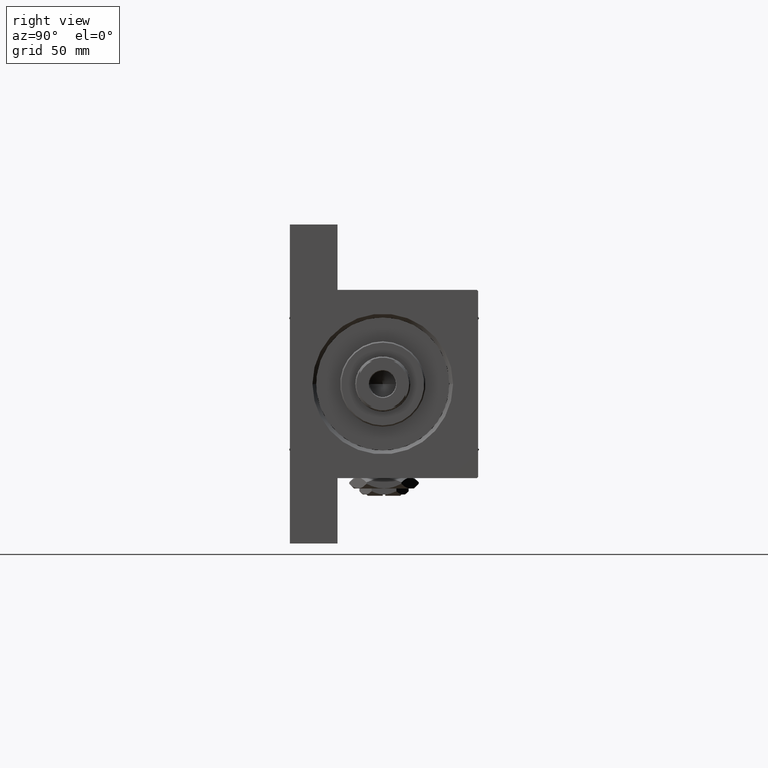
[diagram: clean part render]
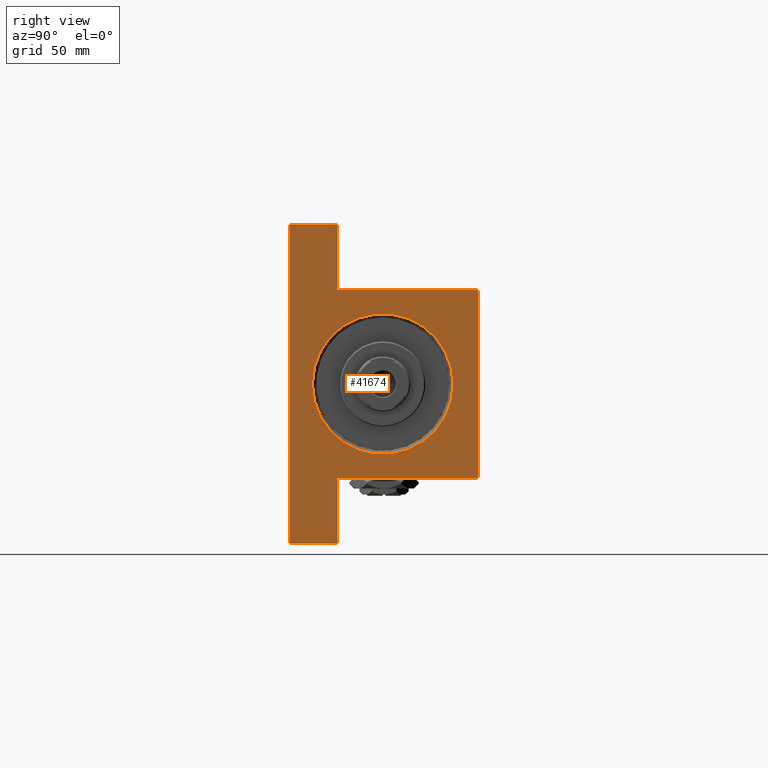
[diagram: same view with one face highlighted and labeled with its STEP entity id]
A machine part, right view. The second image highlights one B-rep face of the part: STEP entity #41674.
In plain terms, the highlighted planar face has unit normal (-1, 0, 0).
Its self-contained STEP definition (entity closure, byte-faithful):
#229 = DIRECTION ( 'NONE',  ( -1.000000000000000000, -0.000000000000000000, 0.000000000000000000 ) ) ;
#1026 = EDGE_CURVE ( 'NONE', #18470, #19590, #39704, .T. ) ;
#1058 = ORIENTED_EDGE ( 'NONE', *, *, #15769, .T. ) ;
#1314 = VERTEX_POINT ( 'NONE', #43135 ) ;
#1386 = EDGE_CURVE ( 'NONE', #12881, #43313, #19716, .T. ) ;
#1469 = CARTESIAN_POINT ( 'NONE',  ( 210.0000000000000000, 37.50000000000000000, -37.50000000000000000 ) ) ;
#1666 = DIRECTION ( 'NONE',  ( 0.000000000000000000, 0.000000000000000000, -1.000000000000000000 ) ) ;
#1816 = DIRECTION ( 'NONE',  ( -0.000000000000000000, -1.000000000000000000, -0.000000000000000000 ) ) ;
#2042 = LINE ( 'NONE', #39927, #9520 ) ;
#2946 = VERTEX_POINT ( 'NONE', #31979 ) ;
#3188 = AXIS2_PLACEMENT_3D ( 'NONE', #27691, #7982, #19952 ) ;
#3711 = FACE_OUTER_BOUND ( 'NONE', #48593, .T. ) ;
#4050 = ORIENTED_EDGE ( 'NONE', *, *, #27197, .T. ) ;
#4256 = CARTESIAN_POINT ( 'NONE',  ( 210.0000000000000000, 0.000000000000000000, -28.49999999999999645 ) ) ;
#4939 = VECTOR ( 'NONE', #47857, 1000.000000000000000 ) ;
#4972 = DIRECTION ( 'NONE',  ( 0.000000000000000000, -0.7071067811865279218, 0.7071067811865671127 ) ) ;
#5523 = EDGE_CURVE ( 'NONE', #5552, #2946, #9560, .T. ) ;
#5552 = VERTEX_POINT ( 'NONE', #4256 ) ;
#5931 = EDGE_CURVE ( 'NONE', #36072, #25886, #24645, .T. ) ;
#5951 = VERTEX_POINT ( 'NONE', #7795 ) ;
#6008 = LINE ( 'NONE', #43153, #4939 ) ;
#6169 = EDGE_CURVE ( 'NONE', #25886, #12881, #40422, .T. ) ;
#6178 = CARTESIAN_POINT ( 'NONE',  ( 210.0000000000000284, -63.50000000000002842, -18.50000000000000000 ) ) ;
#7194 = CIRCLE ( 'NONE', #37554, 27.99999999999999645 ) ;
#7795 = CARTESIAN_POINT ( 'NONE',  ( 210.0000000000000000, 37.50000000000000000, 36.99999999999999289 ) ) ;
#7982 = DIRECTION ( 'NONE',  ( -1.000000000000000000, -0.000000000000000000, 0.000000000000000000 ) ) ;
#8299 = CARTESIAN_POINT ( 'NONE',  ( 210.0000000000000000, -37.50000000000000711, -18.50000000000000355 ) ) ;
#8318 = ORIENTED_EDGE ( 'NONE', *, *, #16060, .F. ) ;
#9520 = VECTOR ( 'NONE', #40406, 1000.000000000000000 ) ;
#9560 = CIRCLE ( 'NONE', #3188, 27.99999999999999645 ) ;
#10249 = CARTESIAN_POINT ( 'NONE',  ( 210.0000000000000284, -63.50000000000002842, -18.50000000000000000 ) ) ;
#11532 = DIRECTION ( 'NONE',  ( 0.000000000000000000, 0.000000000000000000, 1.000000000000000000 ) ) ;
#11783 = CARTESIAN_POINT ( 'NONE',  ( 210.0000000000000000, 0.000000000000000000, -0.5000000000000004441 ) ) ;
#11931 = FACE_BOUND ( 'NONE', #32618, .T. ) ;
#12375 = LINE ( 'NONE', #31836, #20404 ) ;
#12429 = DIRECTION ( 'NONE',  ( 0.000000000000000000, -1.000000000000000000, 0.000000000000000000 ) ) ;
#12881 = VERTEX_POINT ( 'NONE', #6178 ) ;
#13279 = CARTESIAN_POINT ( 'NONE',  ( 210.0000000000000568, 63.50000000000000000, -18.50000000000000000 ) ) ;
#13559 = VECTOR ( 'NONE', #20893, 1000.000000000000000 ) ;
#13849 = CARTESIAN_POINT ( 'NONE',  ( 210.0000000000000000, -37.50000000000000000, 36.99999999999997868 ) ) ;
#15769 = EDGE_CURVE ( 'NONE', #5951, #1314, #47558, .T. ) ;
#16060 = EDGE_CURVE ( 'NONE', #5951, #19590, #12375, .T. ) ;
#16339 = ORIENTED_EDGE ( 'NONE', *, *, #5523, .T. ) ;
#17269 = DIRECTION ( 'NONE',  ( -1.067522139062650277E-15, -1.000000000000000000, 0.000000000000000000 ) ) ;
#18293 = CARTESIAN_POINT ( 'NONE',  ( 210.0000000000000000, -36.99999999999997158, 37.49999999999997868 ) ) ;
#18455 = VECTOR ( 'NONE', #30813, 1000.000000000000000 ) ;
#18470 = VERTEX_POINT ( 'NONE', #48516 ) ;
#18923 = CARTESIAN_POINT ( 'NONE',  ( 210.0000000000000000, 0.000000000000000000, 0.000000000000000000 ) ) ;
#19590 = VERTEX_POINT ( 'NONE', #38316 ) ;
#19716 = LINE ( 'NONE', #31690, #27768 ) ;
#19937 = ORIENTED_EDGE ( 'NONE', *, *, #1026, .T. ) ;
#19952 = DIRECTION ( 'NONE',  ( 0.000000000000000000, 0.000000000000000000, 1.000000000000000000 ) ) ;
#20404 = VECTOR ( 'NONE', #1666, 1000.000000000000000 ) ;
#20893 = DIRECTION ( 'NONE',  ( 0.000000000000000000, -9.251858538542972814E-17, -1.000000000000000000 ) ) ;
#23133 = EDGE_CURVE ( 'NONE', #29998, #43313, #39604, .T. ) ;
#24455 = ORIENTED_EDGE ( 'NONE', *, *, #1386, .T. ) ;
#24645 = LINE ( 'NONE', #39824, #13559 ) ;
#24741 = ORIENTED_EDGE ( 'NONE', *, *, #6169, .T. ) ;
#25062 = VERTEX_POINT ( 'NONE', #18293 ) ;
#25276 = CARTESIAN_POINT ( 'NONE',  ( 210.0000000000000284, -63.50000000000002842, -37.50000000000000000 ) ) ;
#25886 = VERTEX_POINT ( 'NONE', #8299 ) ;
#26088 = CARTESIAN_POINT ( 'NONE',  ( 210.0000000000000568, 63.50000000000000000, -18.50000000000000000 ) ) ;
#27119 = VECTOR ( 'NONE', #1816, 1000.000000000000000 ) ;
#27154 = PLANE ( 'NONE',  #37644 ) ;
#27169 = ORIENTED_EDGE ( 'NONE', *, *, #33219, .T. ) ;
#27197 = EDGE_CURVE ( 'NONE', #1314, #25062, #2042, .T. ) ;
#27691 = CARTESIAN_POINT ( 'NONE',  ( 210.0000000000000000, 0.000000000000000000, -0.5000000000000004441 ) ) ;
#27768 = VECTOR ( 'NONE', #46867, 1000.000000000000000 ) ;
#28504 = VECTOR ( 'NONE', #12429, 1000.000000000000000 ) ;
#29767 = DIRECTION ( 'NONE',  ( -1.000000000000000000, -0.000000000000000000, 0.000000000000000000 ) ) ;
#29998 = VERTEX_POINT ( 'NONE', #33710 ) ;
#30813 = DIRECTION ( 'NONE',  ( 0.000000000000000000, 0.000000000000000000, -1.000000000000000000 ) ) ;
#30972 = ORIENTED_EDGE ( 'NONE', *, *, #36638, .T. ) ;
#31292 = ORIENTED_EDGE ( 'NONE', *, *, #23133, .F. ) ;
#31690 = CARTESIAN_POINT ( 'NONE',  ( 210.0000000000000284, -63.50000000000002842, -18.50000000000000000 ) ) ;
#31836 = CARTESIAN_POINT ( 'NONE',  ( 210.0000000000000000, 37.50000000000000000, 37.49999999999999289 ) ) ;
#31979 = CARTESIAN_POINT ( 'NONE',  ( 210.0000000000000000, 3.429011037612588881E-15, 27.49999999999999645 ) ) ;
#32383 = CARTESIAN_POINT ( 'NONE',  ( 210.0000000000000000, 37.00000000000002842, 37.49999999999999289 ) ) ;
#32618 = EDGE_LOOP ( 'NONE', ( #16339, #27169 ) ) ;
#33038 = EDGE_CURVE ( 'NONE', #18470, #29998, #37779, .T. ) ;
#33219 = EDGE_CURVE ( 'NONE', #2946, #5552, #7194, .T. ) ;
#33710 = CARTESIAN_POINT ( 'NONE',  ( 210.0000000000000568, 63.50000000000000000, -37.50000000000000000 ) ) ;
#36072 = VERTEX_POINT ( 'NONE', #13849 ) ;
#36089 = ORIENTED_EDGE ( 'NONE', *, *, #5931, .T. ) ;
#36638 = EDGE_CURVE ( 'NONE', #25062, #36072, #6008, .T. ) ;
#37099 = VECTOR ( 'NONE', #4972, 1000.000000000000000 ) ;
#37554 = AXIS2_PLACEMENT_3D ( 'NONE', #11783, #29767, #11532 ) ;
#37644 = AXIS2_PLACEMENT_3D ( 'NONE', #18923, #229, #45813 ) ;
#37779 = LINE ( 'NONE', #26088, #18455 ) ;
#38316 = CARTESIAN_POINT ( 'NONE',  ( 210.0000000000000284, 37.49999999999999289, -18.50000000000000000 ) ) ;
#39604 = LINE ( 'NONE', #1469, #28504 ) ;
#39704 = LINE ( 'NONE', #13279, #46818 ) ;
#39824 = CARTESIAN_POINT ( 'NONE',  ( 210.0000000000000000, -37.50000000000000000, 37.49999999999997868 ) ) ;
#39927 = CARTESIAN_POINT ( 'NONE',  ( 210.0000000000000000, 37.50000000000000000, 37.49999999999999289 ) ) ;
#40406 = DIRECTION ( 'NONE',  ( 0.000000000000000000, -1.000000000000000000, -1.850371707708594316E-16 ) ) ;
#40422 = LINE ( 'NONE', #10249, #27119 ) ;
#41674 = ADVANCED_FACE ( 'NONE', ( #11931, #3711 ), #27154, .F. ) ;
#43135 = CARTESIAN_POINT ( 'NONE',  ( 210.0000000000000000, 37.00000000000002842, 37.49999999999999289 ) ) ;
#43153 = CARTESIAN_POINT ( 'NONE',  ( 210.0000000000000000, -37.50000000000000000, 36.99999999999997868 ) ) ;
#43313 = VERTEX_POINT ( 'NONE', #25276 ) ;
#45813 = DIRECTION ( 'NONE',  ( 0.000000000000000000, 0.000000000000000000, 1.000000000000000000 ) ) ;
#46818 = VECTOR ( 'NONE', #17269, 1000.000000000000000 ) ;
#46867 = DIRECTION ( 'NONE',  ( 0.000000000000000000, 0.000000000000000000, -1.000000000000000000 ) ) ;
#47558 = LINE ( 'NONE', #32383, #37099 ) ;
#47857 = DIRECTION ( 'NONE',  ( -0.000000000000000000, -0.7071067811865672237, -0.7071067811865279218 ) ) ;
#47888 = ORIENTED_EDGE ( 'NONE', *, *, #33038, .F. ) ;
#48516 = CARTESIAN_POINT ( 'NONE',  ( 210.0000000000000568, 63.50000000000000000, -18.50000000000000000 ) ) ;
#48593 = EDGE_LOOP ( 'NONE', ( #8318, #1058, #4050, #30972, #36089, #24741, #24455, #31292, #47888, #19937 ) ) ;